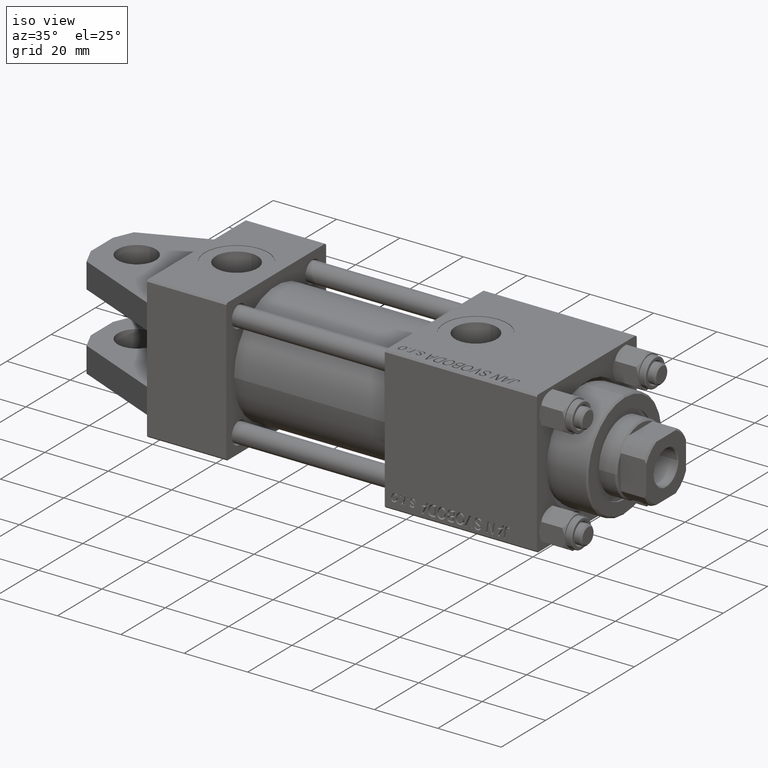
[diagram: clean part render]
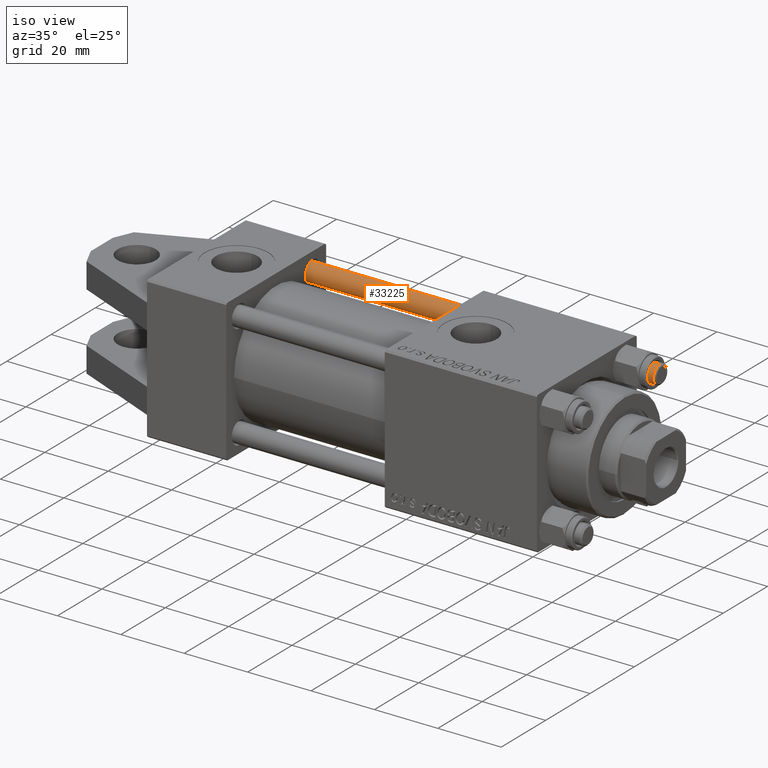
[diagram: same view with one face highlighted and labeled with its STEP entity id]
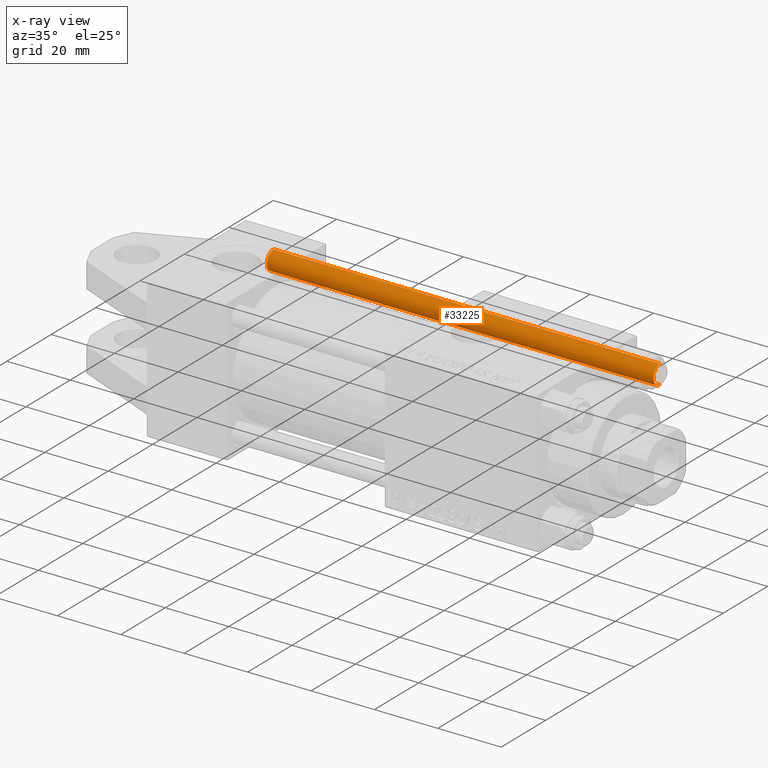
[diagram: x-ray of the same camera — body ghosted, the highlighted face saturated]
A machine part, iso view. The second image highlights one B-rep face of the part: STEP entity #33225.
The next image is the same camera in x-ray: the body ghosted, the highlighted face saturated — about 0% of this face is hidden behind the body in this view.
In plain terms, the highlighted cylindrical surface (edge-blend (fillet) strip) has radius 3 mm, axis along (-1, 0, -0).
Its self-contained STEP definition (entity closure, byte-faithful):
#550 = CARTESIAN_POINT ( 'NONE',  ( -3.000000000000000444, 0.000000000000000000, 0.5000000000000004441 ) ) ;
#1844 = DIRECTION ( 'NONE',  ( -1.000000000000000000, 0.000000000000000000, 0.000000000000000000 ) ) ;
#2494 = CARTESIAN_POINT ( 'NONE',  ( 3.000000000000000444, 3.673940397442060361E-16, 122.4999999999999858 ) ) ;
#3912 = VERTEX_POINT ( 'NONE', #550 ) ;
#4163 = ORIENTED_EDGE ( 'NONE', *, *, #41540, .T. ) ;
#5870 = AXIS2_PLACEMENT_3D ( 'NONE', #26701, #42012, #7594 ) ;
#7594 = DIRECTION ( 'NONE',  ( 1.000000000000000000, 0.000000000000000000, 0.000000000000000000 ) ) ;
#7773 = AXIS2_PLACEMENT_3D ( 'NONE', #45080, #10650, #14682 ) ;
#8895 = DIRECTION ( 'NONE',  ( -0.000000000000000000, -0.000000000000000000, -1.000000000000000000 ) ) ;
#9691 = EDGE_CURVE ( 'NONE', #3912, #25500, #33491, .T. ) ;
#10259 = VECTOR ( 'NONE', #8895, 1000.000000000000000 ) ;
#10650 = DIRECTION ( 'NONE',  ( -0.000000000000000000, -0.000000000000000000, 1.000000000000000000 ) ) ;
#13089 = CARTESIAN_POINT ( 'NONE',  ( -3.000000000000000444, 0.000000000000000000, 122.4999999999999858 ) ) ;
#14414 = DIRECTION ( 'NONE',  ( -0.000000000000000000, -0.000000000000000000, -1.000000000000000000 ) ) ;
#14682 = DIRECTION ( 'NONE',  ( 1.000000000000000000, 0.000000000000000000, 0.000000000000000000 ) ) ;
#15908 = EDGE_LOOP ( 'NONE', ( #16596, #35443, #4163, #32095 ) ) ;
#16273 = EDGE_CURVE ( 'NONE', #21963, #25500, #39304, .T. ) ;
#16596 = ORIENTED_EDGE ( 'NONE', *, *, #16273, .F. ) ;
#21963 = VERTEX_POINT ( 'NONE', #2494 ) ;
#24745 = CARTESIAN_POINT ( 'NONE',  ( 3.000000000000000444, 3.673940397442060361E-16, 123.0000000000000000 ) ) ;
#25145 = AXIS2_PLACEMENT_3D ( 'NONE', #45050, #14414, #1844 ) ;
#25500 = VERTEX_POINT ( 'NONE', #46852 ) ;
#26149 = CARTESIAN_POINT ( 'NONE',  ( -3.000000000000000444, 0.000000000000000000, 123.0000000000000000 ) ) ;
#26701 = CARTESIAN_POINT ( 'NONE',  ( 0.000000000000000000, 0.000000000000000000, 122.4999999999999858 ) ) ;
#28359 = VECTOR ( 'NONE', #31100, 1000.000000000000000 ) ;
#31100 = DIRECTION ( 'NONE',  ( -0.000000000000000000, -0.000000000000000000, -1.000000000000000000 ) ) ;
#32095 = ORIENTED_EDGE ( 'NONE', *, *, #9691, .T. ) ;
#32788 = CYLINDRICAL_SURFACE ( 'NONE', #25145, 3.000000000000000444 ) ;
#33225 = ADVANCED_FACE ( 'NONE', ( #48330 ), #32788, .T. ) ;
#33480 = EDGE_CURVE ( 'NONE', #21963, #38477, #47573, .T. ) ;
#33491 = CIRCLE ( 'NONE', #7773, 3.000000000000000444 ) ;
#35443 = ORIENTED_EDGE ( 'NONE', *, *, #33480, .T. ) ;
#38477 = VERTEX_POINT ( 'NONE', #13089 ) ;
#39304 = LINE ( 'NONE', #24745, #10259 ) ;
#41540 = EDGE_CURVE ( 'NONE', #38477, #3912, #49005, .T. ) ;
#42012 = DIRECTION ( 'NONE',  ( 0.000000000000000000, 0.000000000000000000, -1.000000000000000000 ) ) ;
#45050 = CARTESIAN_POINT ( 'NONE',  ( 0.000000000000000000, 0.000000000000000000, 123.0000000000000000 ) ) ;
#45080 = CARTESIAN_POINT ( 'NONE',  ( 0.000000000000000000, 0.000000000000000000, 0.5000000000000004441 ) ) ;
#46852 = CARTESIAN_POINT ( 'NONE',  ( 3.000000000000000444, 3.673940397442060361E-16, 0.5000000000000004441 ) ) ;
#47573 = CIRCLE ( 'NONE', #5870, 3.000000000000000444 ) ;
#48330 = FACE_OUTER_BOUND ( 'NONE', #15908, .T. ) ;
#49005 = LINE ( 'NONE', #26149, #28359 ) ;